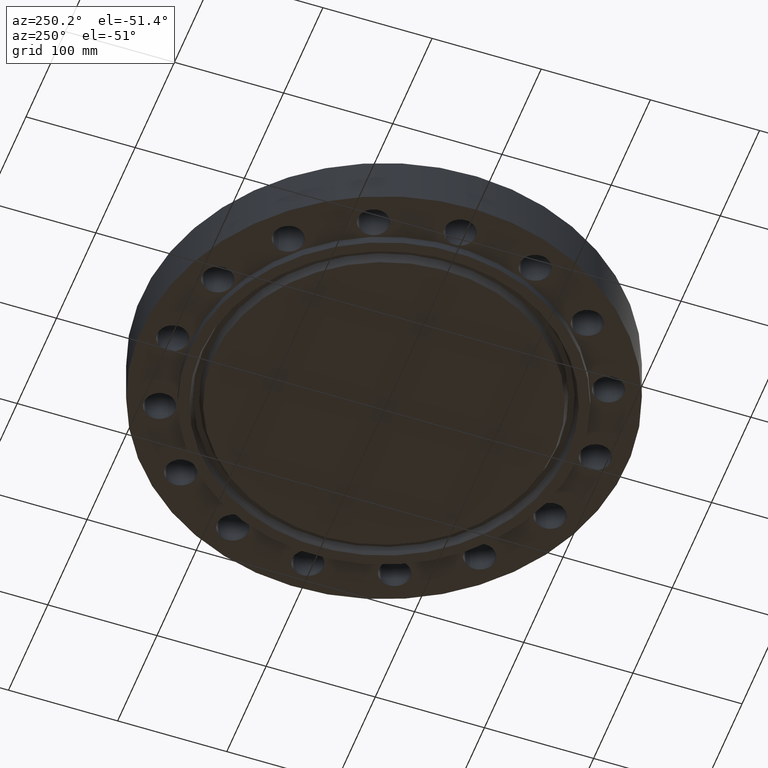
[diagram: clean part render]
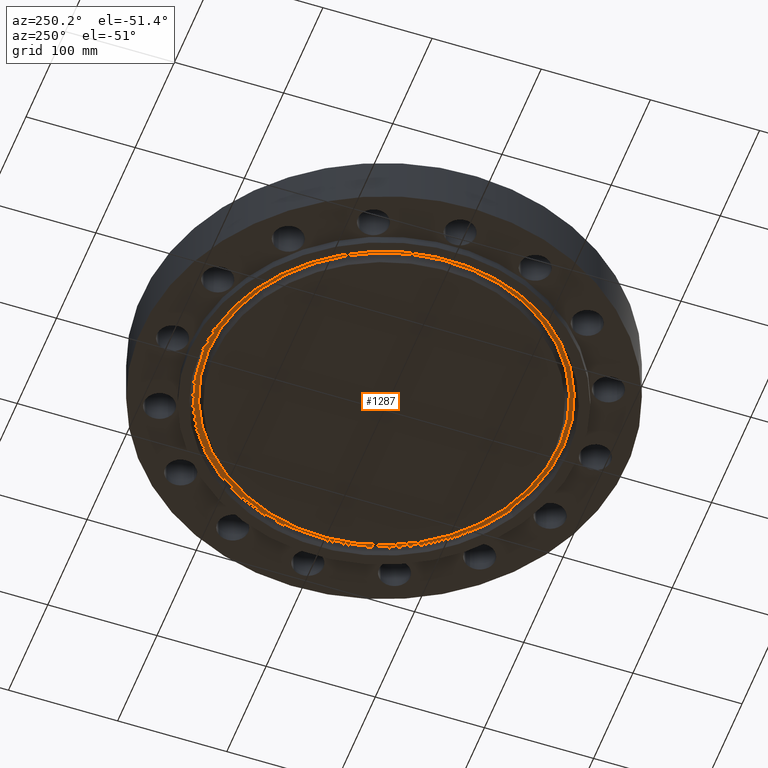
[diagram: same view with one face highlighted and labeled with its STEP entity id]
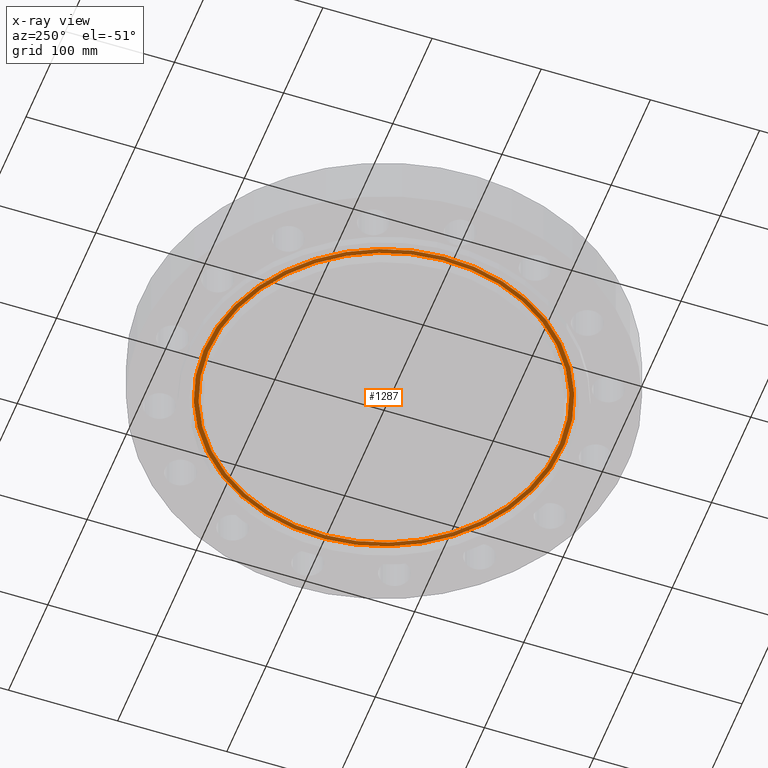
[diagram: x-ray of the same camera — body ghosted, the highlighted face saturated]
A machine part, auxiliary view. The second image highlights one B-rep face of the part: STEP entity #1287.
The next image is the same camera in x-ray: the body ghosted, the highlighted face saturated — about 0% of this face is hidden behind the body in this view.
In plain terms, the highlighted planar face has unit normal (0, 0, -1).
Its self-contained STEP definition (entity closure, byte-faithful):
#954=AXIS2_PLACEMENT_3D('Plane Axis2P3D',#951,#952,#953) ;
#1209=AXIS2_PLACEMENT_3D('Circle Axis2P3D',#1207,#1208,$) ;
#1255=AXIS2_PLACEMENT_3D('Circle Axis2P3D',#1253,#1254,$) ;
#1271=AXIS2_PLACEMENT_3D('Circle Axis2P3D',#1269,#1270,$) ;
#1280=AXIS2_PLACEMENT_3D('Circle Axis2P3D',#1278,#1279,$) ;
#951=CARTESIAN_POINT('Axis2P3D Location',(0.,7.00000000003,0.)) ;
#1204=CARTESIAN_POINT('Vertex',(-3.09518786626,5.66570338558,-2.09805925913E-016)) ;
#1207=CARTESIAN_POINT('Axis2P3D Location',(0.,0.,-2.09805925913E-016)) ;
#1211=CARTESIAN_POINT('Vertex',(3.09518786626,-5.66570338558,-2.09805925913E-016)) ;
#1253=CARTESIAN_POINT('Axis2P3D Location',(0.,0.,-2.09805925913E-016)) ;
#1269=CARTESIAN_POINT('Axis2P3D Location',(0.,0.,0.)) ;
#1273=CARTESIAN_POINT('Vertex',(3.01748775097,-5.52347427856,2.88483148131E-016)) ;
#1275=CARTESIAN_POINT('Vertex',(-3.01748775097,5.52347427856,2.88483148131E-016)) ;
#1278=CARTESIAN_POINT('Axis2P3D Location',(0.,0.,0.)) ;
#952=DIRECTION('Axis2P3D Direction',(0.,0.,-0.0393700787402)) ;
#953=DIRECTION('Axis2P3D XDirection',(0.0393700787402,0.,0.)) ;
#1208=DIRECTION('Axis2P3D Direction',(0.,0.,0.0393700787402)) ;
#1254=DIRECTION('Axis2P3D Direction',(0.,0.,0.0393700787402)) ;
#1270=DIRECTION('Axis2P3D Direction',(0.,0.,-0.0393700787402)) ;
#1279=DIRECTION('Axis2P3D Direction',(0.,0.,-0.0393700787402)) ;
#1266=ORIENTED_EDGE('',*,*,#1213,.F.) ;
#1267=ORIENTED_EDGE('',*,*,#1257,.F.) ;
#1284=ORIENTED_EDGE('',*,*,#1277,.T.) ;
#1285=ORIENTED_EDGE('',*,*,#1282,.T.) ;
#1286=FACE_BOUND('',#1283,.T.) ;
#1287=ADVANCED_FACE('PartBody',(#1268,#1286),#955,.T.) ;
#1210=CIRCLE('generated circle',#1209,6.45603460189) ;
#1256=CIRCLE('generated circle',#1255,6.45603460189) ;
#1272=CIRCLE('generated circle',#1271,6.29396539816) ;
#1281=CIRCLE('generated circle',#1280,6.29396539816) ;
#1213=EDGE_CURVE('',#1205,#1212,#1210,.T.) ;
#1257=EDGE_CURVE('',#1212,#1205,#1256,.T.) ;
#1277=EDGE_CURVE('',#1274,#1276,#1272,.F.) ;
#1282=EDGE_CURVE('',#1276,#1274,#1281,.F.) ;
#1265=EDGE_LOOP('',(#1266,#1267)) ;
#1283=EDGE_LOOP('',(#1284,#1285)) ;
#1268=FACE_OUTER_BOUND('',#1265,.T.) ;
#955=PLANE('',#954) ;
#1205=VERTEX_POINT('',#1204) ;
#1212=VERTEX_POINT('',#1211) ;
#1274=VERTEX_POINT('',#1273) ;
#1276=VERTEX_POINT('',#1275) ;